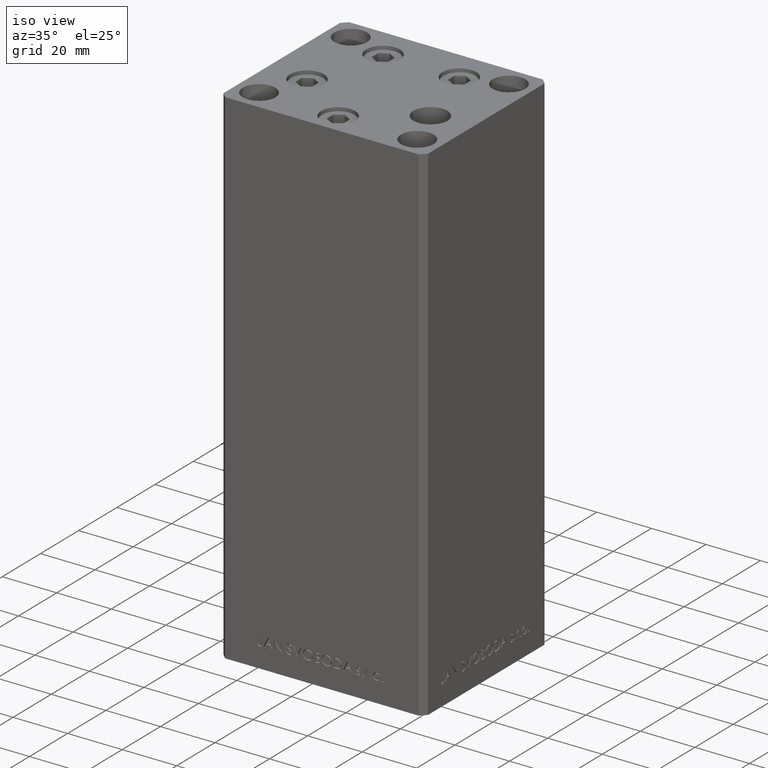
[diagram: clean part render]
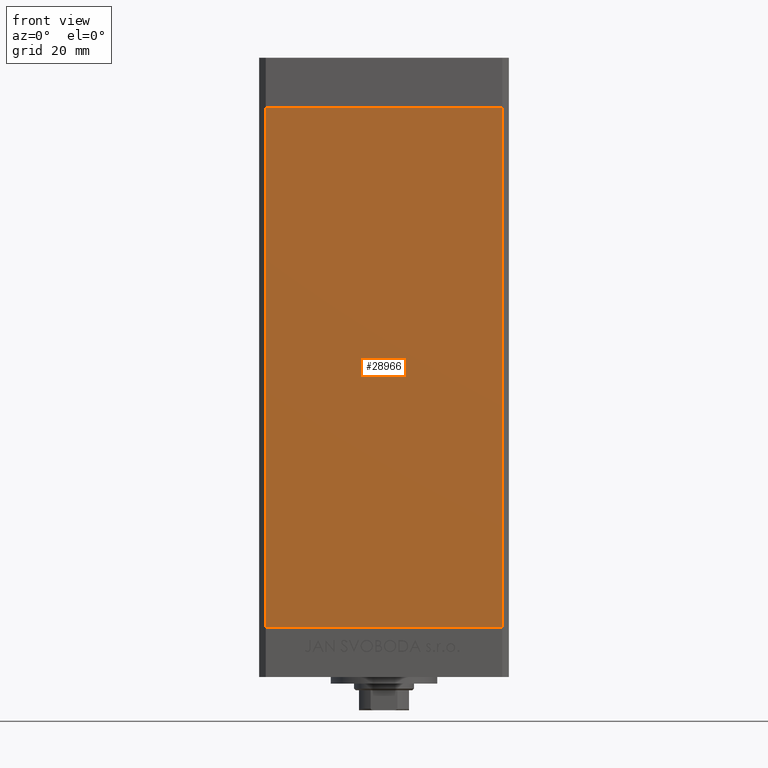
[diagram: tour spotlight — one face highlighted and labeled with its STEP entity id]
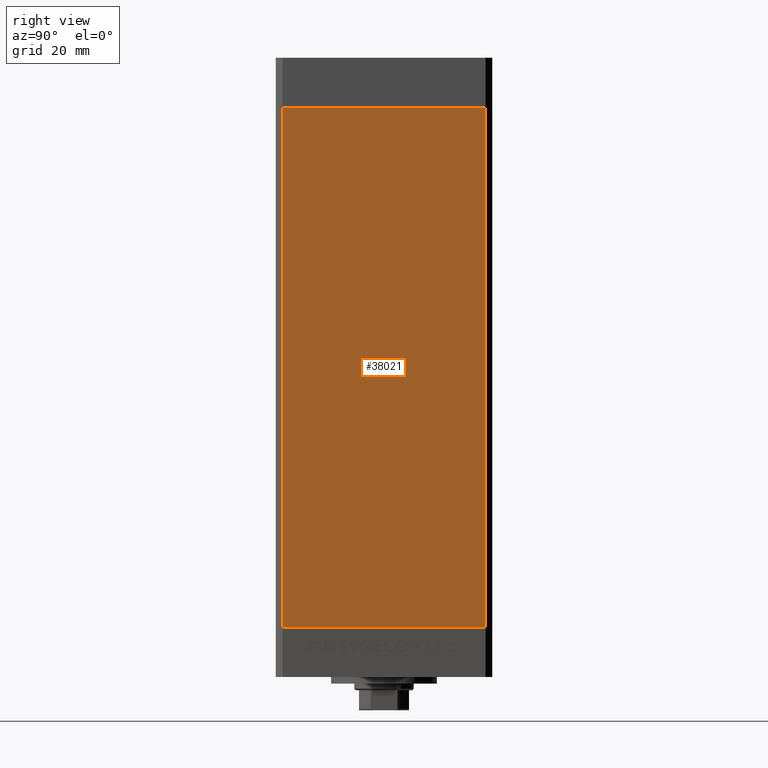
[diagram: tour spotlight — one face highlighted and labeled with its STEP entity id]
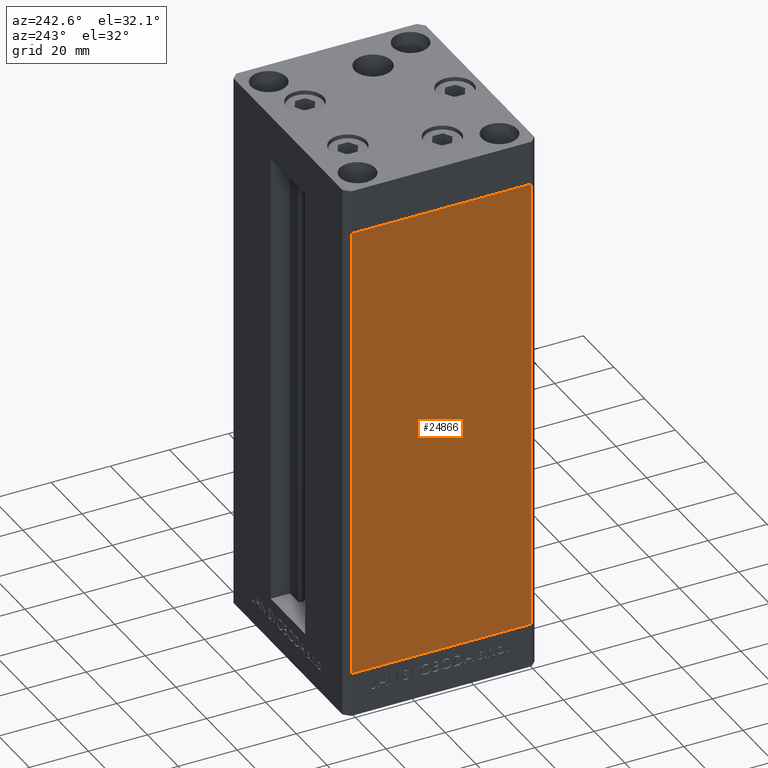
[diagram: tour spotlight — one face highlighted and labeled with its STEP entity id]
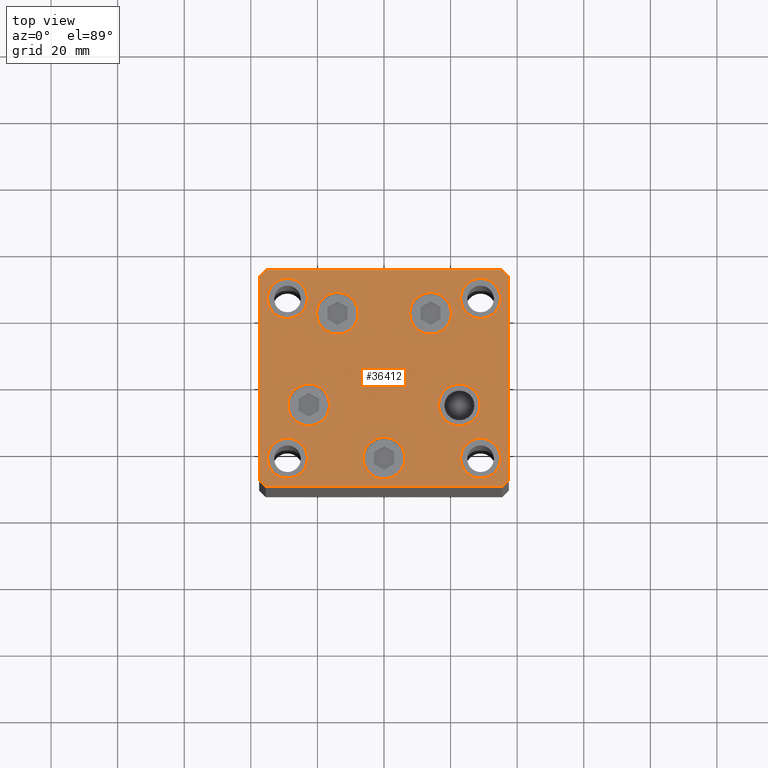
[diagram: tour spotlight — one face highlighted and labeled with its STEP entity id]
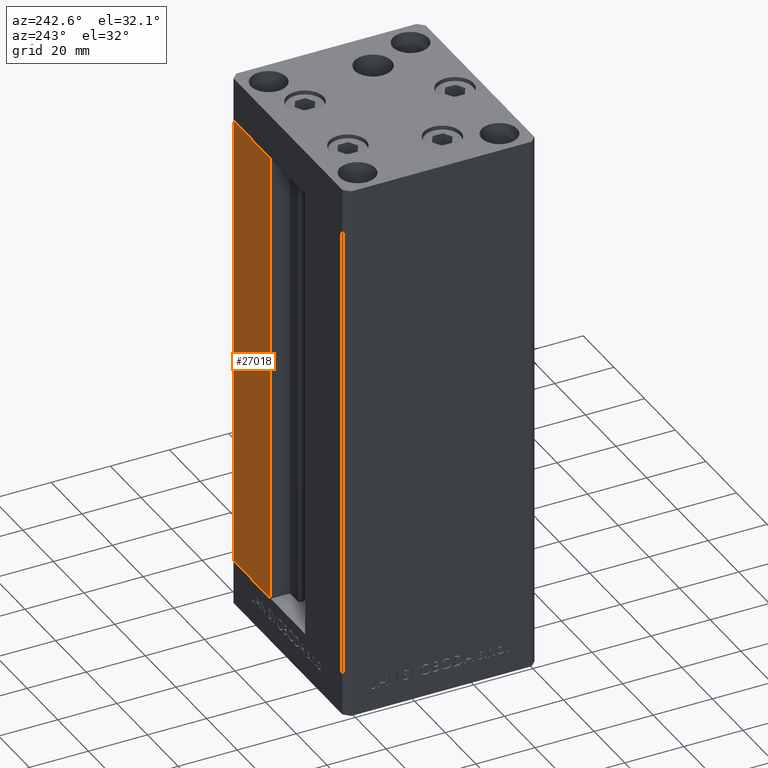
[diagram: tour spotlight — one face highlighted and labeled with its STEP entity id]
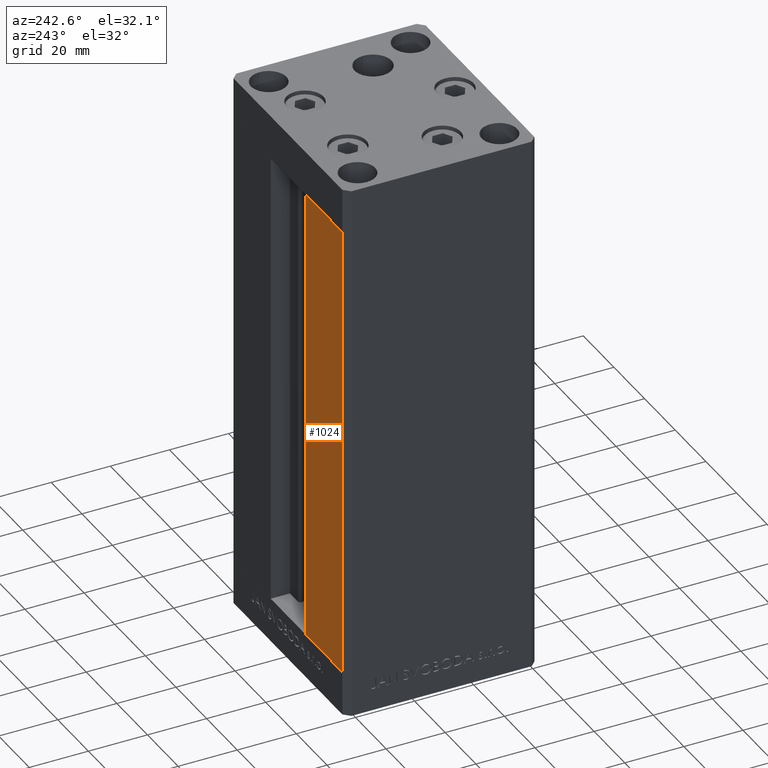
[diagram: tour spotlight — one face highlighted and labeled with its STEP entity id]
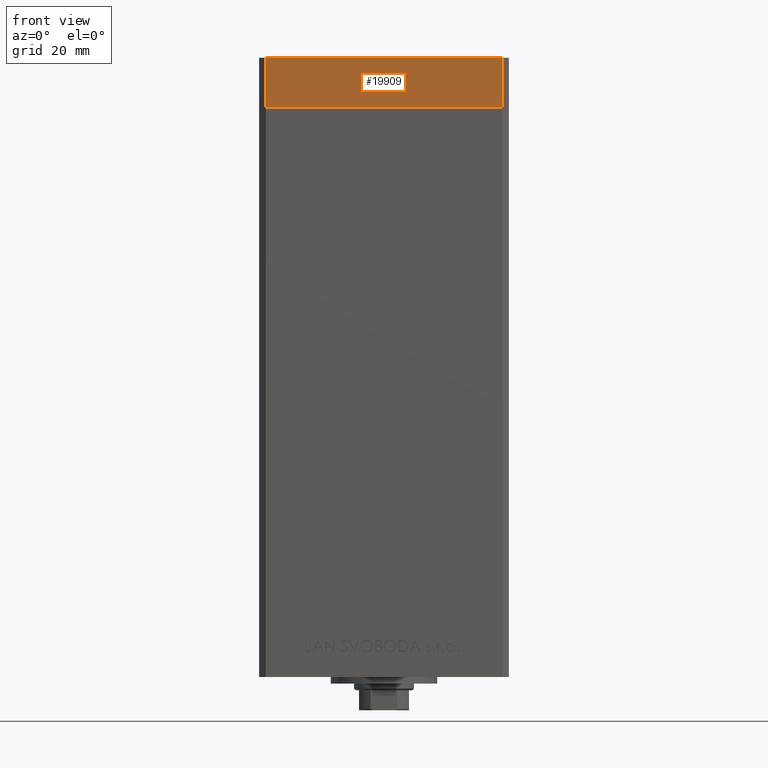
[diagram: tour spotlight — one face highlighted and labeled with its STEP entity id]
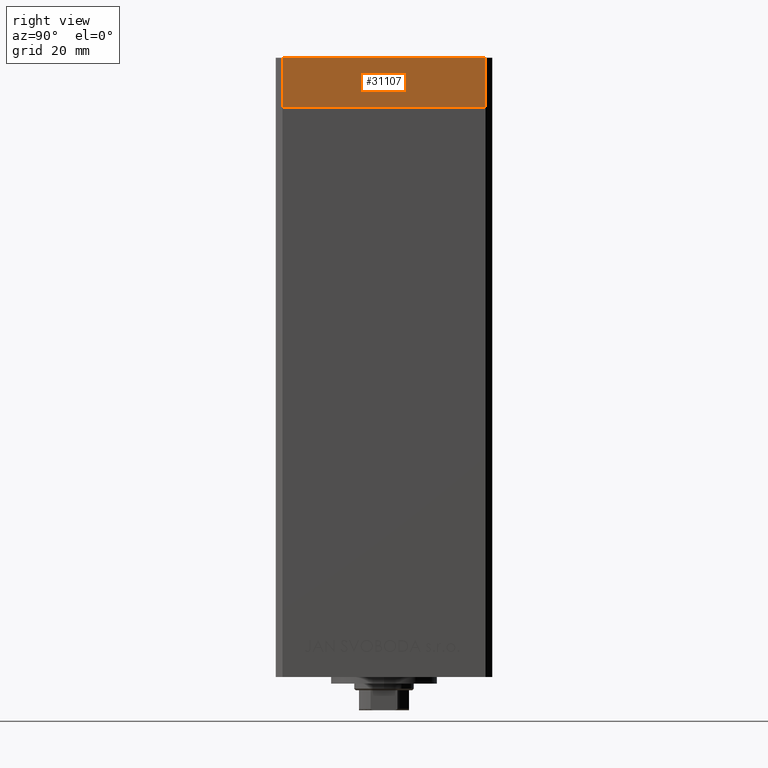
[diagram: tour spotlight — one face highlighted and labeled with its STEP entity id]
A machine part: a face-by-face anatomy tour. The part has 1159 B-rep faces; the first image is the clean iso view, then the 8 largest visible faces are spotlighted one at a time (largest first), each with its STEP entity span.

Face 1 — front view, entity #28966. In plain terms, the highlighted planar face has unit normal (0, 1, 0).
Definition (entity closure, byte-faithful):
#1615 = VECTOR ( 'NONE', #41957, 1000.000000000000000 ) ;
#3672 = EDGE_CURVE ( 'NONE', #6453, #14988, #38486, .T. ) ;
#3857 = CARTESIAN_POINT ( 'NONE',  ( -35.49999999999999289, -32.50000000000000000, 156.0000000000000000 ) ) ;
#4344 = DIRECTION ( 'NONE',  ( -0.000000000000000000, -0.000000000000000000, -1.000000000000000000 ) ) ;
#4359 = AXIS2_PLACEMENT_3D ( 'NONE', #45685, #4860, #23884 ) ;
#4860 = DIRECTION ( 'NONE',  ( 0.000000000000000000, 1.000000000000000000, 0.000000000000000000 ) ) ;
#6453 = VERTEX_POINT ( 'NONE', #3857 ) ;
#7443 = VECTOR ( 'NONE', #28297, 1000.000000000000000 ) ;
#7828 = CARTESIAN_POINT ( 'NONE',  ( 35.49999999999999289, -32.50000000000000000, 0.000000000000000000 ) ) ;
#8543 = CARTESIAN_POINT ( 'NONE',  ( -35.49999999999999289, -32.50000000000000000, 156.0000000000000000 ) ) ;
#10797 = EDGE_LOOP ( 'NONE', ( #30755, #13053, #24607, #21360 ) ) ;
#11780 = FACE_OUTER_BOUND ( 'NONE', #10797, .T. ) ;
#13053 = ORIENTED_EDGE ( 'NONE', *, *, #16970, .F. ) ;
#14988 = VERTEX_POINT ( 'NONE', #31912 ) ;
#15735 = PLANE ( 'NONE',  #4359 ) ;
#16970 = EDGE_CURVE ( 'NONE', #14988, #29059, #18964, .T. ) ;
#18964 = LINE ( 'NONE', #48925, #38212 ) ;
#19472 = EDGE_CURVE ( 'NONE', #30829, #29059, #47848, .T. ) ;
#21360 = ORIENTED_EDGE ( 'NONE', *, *, #43463, .T. ) ;
#23884 = DIRECTION ( 'NONE',  ( 0.000000000000000000, -0.000000000000000000, 1.000000000000000000 ) ) ;
#24607 = ORIENTED_EDGE ( 'NONE', *, *, #3672, .F. ) ;
#28297 = DIRECTION ( 'NONE',  ( 1.000000000000000000, 0.000000000000000000, 0.000000000000000000 ) ) ;
#28966 = ADVANCED_FACE ( 'NONE', ( #11780 ), #15735, .F. ) ;
#29059 = VERTEX_POINT ( 'NONE', #7828 ) ;
#30755 = ORIENTED_EDGE ( 'NONE', *, *, #19472, .T. ) ;
#30829 = VERTEX_POINT ( 'NONE', #33143 ) ;
#31912 = CARTESIAN_POINT ( 'NONE',  ( 35.49999999999999289, -32.50000000000000000, 156.0000000000000000 ) ) ;
#33143 = CARTESIAN_POINT ( 'NONE',  ( -35.49999999999999289, -32.50000000000000000, 0.000000000000000000 ) ) ;
#33323 = DIRECTION ( 'NONE',  ( -0.000000000000000000, -0.000000000000000000, -1.000000000000000000 ) ) ;
#34271 = CARTESIAN_POINT ( 'NONE',  ( -35.49999999999999289, -32.50000000000000000, 156.0000000000000000 ) ) ;
#38212 = VECTOR ( 'NONE', #33323, 1000.000000000000000 ) ;
#38486 = LINE ( 'NONE', #8543, #1615 ) ;
#39694 = CARTESIAN_POINT ( 'NONE',  ( -35.49999999999999289, -32.50000000000000000, 0.000000000000000000 ) ) ;
#41707 = LINE ( 'NONE', #34271, #46593 ) ;
#41957 = DIRECTION ( 'NONE',  ( 1.000000000000000000, 0.000000000000000000, 0.000000000000000000 ) ) ;
#43463 = EDGE_CURVE ( 'NONE', #6453, #30829, #41707, .T. ) ;
#45685 = CARTESIAN_POINT ( 'NONE',  ( -35.49999999999999289, -32.50000000000000000, 156.0000000000000000 ) ) ;
#46593 = VECTOR ( 'NONE', #4344, 1000.000000000000000 ) ;
#47848 = LINE ( 'NONE', #39694, #7443 ) ;
#48925 = CARTESIAN_POINT ( 'NONE',  ( 35.49999999999999289, -32.50000000000000000, 156.0000000000000000 ) ) ;

Face 2 — right view, entity #38021. In plain terms, the highlighted planar face has unit normal (1, -0, 0).
Definition (entity closure, byte-faithful):
#3224 = VERTEX_POINT ( 'NONE', #18986 ) ;
#3280 = LINE ( 'NONE', #36908, #9006 ) ;
#3858 = AXIS2_PLACEMENT_3D ( 'NONE', #31348, #38544, #34576 ) ;
#5426 = ORIENTED_EDGE ( 'NONE', *, *, #37177, .F. ) ;
#6684 = EDGE_LOOP ( 'NONE', ( #5426, #45636, #17080, #43014 ) ) ;
#6973 = VERTEX_POINT ( 'NONE', #21514 ) ;
#9006 = VECTOR ( 'NONE', #40389, 1000.000000000000000 ) ;
#11167 = CARTESIAN_POINT ( 'NONE',  ( 37.50000000000000711, 30.50000000000000000, 156.0000000000000000 ) ) ;
#15535 = PLANE ( 'NONE',  #3858 ) ;
#15683 = VECTOR ( 'NONE', #32560, 1000.000000000000000 ) ;
#16501 = FACE_OUTER_BOUND ( 'NONE', #6684, .T. ) ;
#16741 = LINE ( 'NONE', #42990, #15683 ) ;
#17080 = ORIENTED_EDGE ( 'NONE', *, *, #46245, .T. ) ;
#17406 = EDGE_CURVE ( 'NONE', #30280, #6973, #3280, .T. ) ;
#18945 = CARTESIAN_POINT ( 'NONE',  ( 37.50000000000000711, 30.50000000000000000, 156.0000000000000000 ) ) ;
#18986 = CARTESIAN_POINT ( 'NONE',  ( 37.50000000000000711, 30.50000000000000000, 0.000000000000000000 ) ) ;
#21514 = CARTESIAN_POINT ( 'NONE',  ( 37.49999999999999289, -30.50000000000000000, 0.000000000000000000 ) ) ;
#23349 = CARTESIAN_POINT ( 'NONE',  ( 37.49999999999999289, -30.50000000000000000, 156.0000000000000000 ) ) ;
#25630 = DIRECTION ( 'NONE',  ( -0.000000000000000000, -0.000000000000000000, -1.000000000000000000 ) ) ;
#26241 = DIRECTION ( 'NONE',  ( -2.275047181608927644E-16, -1.000000000000000000, 0.000000000000000000 ) ) ;
#28248 = VECTOR ( 'NONE', #25630, 1000.000000000000000 ) ;
#28870 = CARTESIAN_POINT ( 'NONE',  ( 37.50000000000000711, 30.50000000000000000, 156.0000000000000000 ) ) ;
#30280 = VERTEX_POINT ( 'NONE', #23349 ) ;
#31348 = CARTESIAN_POINT ( 'NONE',  ( 37.50000000000000711, 30.50000000000000000, 156.0000000000000000 ) ) ;
#32560 = DIRECTION ( 'NONE',  ( -2.275047181608927644E-16, -1.000000000000000000, 0.000000000000000000 ) ) ;
#34576 = DIRECTION ( 'NONE',  ( 2.275047181608927644E-16, 1.000000000000000000, 0.000000000000000000 ) ) ;
#35002 = EDGE_CURVE ( 'NONE', #39675, #3224, #44215, .T. ) ;
#36908 = CARTESIAN_POINT ( 'NONE',  ( 37.49999999999999289, -30.50000000000000000, 156.0000000000000000 ) ) ;
#37177 = EDGE_CURVE ( 'NONE', #3224, #6973, #16741, .T. ) ;
#38021 = ADVANCED_FACE ( 'NONE', ( #16501 ), #15535, .T. ) ;
#38544 = DIRECTION ( 'NONE',  ( 1.000000000000000000, -2.275047181608927644E-16, 0.000000000000000000 ) ) ;
#39675 = VERTEX_POINT ( 'NONE', #18945 ) ;
#40389 = DIRECTION ( 'NONE',  ( -0.000000000000000000, -0.000000000000000000, -1.000000000000000000 ) ) ;
#42747 = VECTOR ( 'NONE', #26241, 1000.000000000000000 ) ;
#42990 = CARTESIAN_POINT ( 'NONE',  ( 37.50000000000000711, 30.50000000000000000, 0.000000000000000000 ) ) ;
#43014 = ORIENTED_EDGE ( 'NONE', *, *, #17406, .T. ) ;
#44215 = LINE ( 'NONE', #28870, #28248 ) ;
#45071 = LINE ( 'NONE', #11167, #42747 ) ;
#45636 = ORIENTED_EDGE ( 'NONE', *, *, #35002, .F. ) ;
#46245 = EDGE_CURVE ( 'NONE', #39675, #30280, #45071, .T. ) ;

Face 3 — auxiliary view, entity #24866. In plain terms, the highlighted planar face has unit normal (1, 0, 0).
Definition (entity closure, byte-faithful):
#68 = ORIENTED_EDGE ( 'NONE', *, *, #17052, .F. ) ;
#253 = PLANE ( 'NONE',  #1240 ) ;
#306 = CARTESIAN_POINT ( 'NONE',  ( -37.50000000000000711, 30.50000000000000000, 0.000000000000000000 ) ) ;
#1240 = AXIS2_PLACEMENT_3D ( 'NONE', #33632, #4447, #46011 ) ;
#1460 = CARTESIAN_POINT ( 'NONE',  ( -37.50000000000000711, 30.50000000000000000, 156.0000000000000000 ) ) ;
#1703 = DIRECTION ( 'NONE',  ( -0.000000000000000000, -0.000000000000000000, -1.000000000000000000 ) ) ;
#4447 = DIRECTION ( 'NONE',  ( 1.000000000000000000, 2.275047181608927644E-16, -0.000000000000000000 ) ) ;
#4874 = DIRECTION ( 'NONE',  ( 2.275047181608927644E-16, -1.000000000000000000, 0.000000000000000000 ) ) ;
#5170 = DIRECTION ( 'NONE',  ( 2.275047181608927644E-16, -1.000000000000000000, 0.000000000000000000 ) ) ;
#10906 = CARTESIAN_POINT ( 'NONE',  ( -37.49999999999999289, -30.50000000000000000, 0.000000000000000000 ) ) ;
#11428 = LINE ( 'NONE', #306, #44671 ) ;
#16246 = VERTEX_POINT ( 'NONE', #24563 ) ;
#17052 = EDGE_CURVE ( 'NONE', #48352, #24121, #42733, .T. ) ;
#21246 = EDGE_CURVE ( 'NONE', #16246, #32570, #11428, .T. ) ;
#21912 = ORIENTED_EDGE ( 'NONE', *, *, #35658, .T. ) ;
#22020 = EDGE_CURVE ( 'NONE', #24121, #32570, #41633, .T. ) ;
#22656 = CARTESIAN_POINT ( 'NONE',  ( -37.49999999999999289, -30.50000000000000000, 156.0000000000000000 ) ) ;
#23413 = CARTESIAN_POINT ( 'NONE',  ( -37.50000000000000711, 30.50000000000000000, 156.0000000000000000 ) ) ;
#23698 = LINE ( 'NONE', #1460, #30606 ) ;
#24121 = VERTEX_POINT ( 'NONE', #22656 ) ;
#24563 = CARTESIAN_POINT ( 'NONE',  ( -37.50000000000000711, 30.50000000000000000, 0.000000000000000000 ) ) ;
#24866 = ADVANCED_FACE ( 'NONE', ( #33880 ), #253, .F. ) ;
#25708 = ORIENTED_EDGE ( 'NONE', *, *, #22020, .F. ) ;
#26328 = VECTOR ( 'NONE', #4874, 1000.000000000000000 ) ;
#30606 = VECTOR ( 'NONE', #1703, 1000.000000000000000 ) ;
#32570 = VERTEX_POINT ( 'NONE', #10906 ) ;
#32657 = ORIENTED_EDGE ( 'NONE', *, *, #21246, .T. ) ;
#33632 = CARTESIAN_POINT ( 'NONE',  ( -37.50000000000000711, 30.50000000000000000, 156.0000000000000000 ) ) ;
#33880 = FACE_OUTER_BOUND ( 'NONE', #40737, .T. ) ;
#35658 = EDGE_CURVE ( 'NONE', #48352, #16246, #23698, .T. ) ;
#37169 = CARTESIAN_POINT ( 'NONE',  ( -37.49999999999999289, -30.50000000000000000, 156.0000000000000000 ) ) ;
#40737 = EDGE_LOOP ( 'NONE', ( #32657, #25708, #68, #21912 ) ) ;
#41633 = LINE ( 'NONE', #37169, #48654 ) ;
#42733 = LINE ( 'NONE', #23413, #26328 ) ;
#44671 = VECTOR ( 'NONE', #5170, 1000.000000000000000 ) ;
#46011 = DIRECTION ( 'NONE',  ( -2.275047181608927644E-16, 1.000000000000000000, 0.000000000000000000 ) ) ;
#46053 = CARTESIAN_POINT ( 'NONE',  ( -37.50000000000000711, 30.50000000000000000, 156.0000000000000000 ) ) ;
#48080 = DIRECTION ( 'NONE',  ( -0.000000000000000000, -0.000000000000000000, -1.000000000000000000 ) ) ;
#48352 = VERTEX_POINT ( 'NONE', #46053 ) ;
#48654 = VECTOR ( 'NONE', #48080, 1000.000000000000000 ) ;

Face 4 — top view, entity #36412. In plain terms, the highlighted planar face has unit normal (0, 0, 1).
Definition (entity closure, byte-faithful):
#635 = CARTESIAN_POINT ( 'NONE',  ( -35.00000000000000711, 24.00000000000000711, 0.000000000000000000 ) ) ;
#784 = DIRECTION ( 'NONE',  ( 1.000000000000000000, 0.000000000000000000, 0.000000000000000000 ) ) ;
#1067 = FACE_BOUND ( 'NONE', #29902, .T. ) ;
#1311 = DIRECTION ( 'NONE',  ( 1.000000000000000000, 0.000000000000000000, 0.000000000000000000 ) ) ;
#1316 = EDGE_CURVE ( 'NONE', #1577, #38090, #8615, .T. ) ;
#1577 = VERTEX_POINT ( 'NONE', #47611 ) ;
#1899 = ORIENTED_EDGE ( 'NONE', *, *, #19289, .T. ) ;
#1944 = DIRECTION ( 'NONE',  ( 1.000000000000000000, 0.000000000000000000, 0.000000000000000000 ) ) ;
#2448 = ORIENTED_EDGE ( 'NONE', *, *, #40723, .T. ) ;
#2458 = VERTEX_POINT ( 'NONE', #9267 ) ;
#3151 = EDGE_CURVE ( 'NONE', #15138, #32490, #17341, .T. ) ;
#3172 = EDGE_LOOP ( 'NONE', ( #6518, #40600 ) ) ;
#3352 = DIRECTION ( 'NONE',  ( 1.000000000000000000, 0.000000000000000000, 0.000000000000000000 ) ) ;
#3405 = VERTEX_POINT ( 'NONE', #17231 ) ;
#3582 = EDGE_LOOP ( 'NONE', ( #22235, #48798 ) ) ;
#3764 = EDGE_LOOP ( 'NONE', ( #23133, #1899, #22335, #14772, #24613, #30028, #14711, #11313 ) ) ;
#4007 = DIRECTION ( 'NONE',  ( 0.000000000000000000, 0.000000000000000000, 1.000000000000000000 ) ) ;
#4031 = CARTESIAN_POINT ( 'NONE',  ( -23.00000000000001421, -23.99999999999999289, 0.000000000000000000 ) ) ;
#4178 = EDGE_LOOP ( 'NONE', ( #31979, #27496 ) ) ;
#4292 = DIRECTION ( 'NONE',  ( 0.000000000000000000, 0.000000000000000000, 1.000000000000000000 ) ) ;
#4294 = CARTESIAN_POINT ( 'NONE',  ( -37.50000000000001421, 30.49999999999998579, 0.000000000000000000 ) ) ;
#4341 = CIRCLE ( 'NONE', #28798, 5.999999999999998224 ) ;
#4370 = DIRECTION ( 'NONE',  ( 1.000000000000000000, 0.000000000000000000, 0.000000000000000000 ) ) ;
#4380 = CIRCLE ( 'NONE', #19354, 6.000000000000005329 ) ;
#4575 = CARTESIAN_POINT ( 'NONE',  ( -35.50000000000002842, 32.49999999999999289, 0.000000000000000000 ) ) ;
#4673 = AXIS2_PLACEMENT_3D ( 'NONE', #42272, #43003, #23443 ) ;
#4804 = DIRECTION ( 'NONE',  ( 1.000000000000000000, 0.000000000000000000, 0.000000000000000000 ) ) ;
#5050 = DIRECTION ( 'NONE',  ( 0.000000000000000000, 0.000000000000000000, 1.000000000000000000 ) ) ;
#5097 = CARTESIAN_POINT ( 'NONE',  ( 23.00000000000001066, 24.00000000000000711, 0.000000000000000000 ) ) ;
#5115 = DIRECTION ( 'NONE',  ( 0.000000000000000000, -0.000000000000000000, -1.000000000000000000 ) ) ;
#5788 = CARTESIAN_POINT ( 'NONE',  ( 13.99106857963322348, 19.50000000000000000, 0.000000000000000000 ) ) ;
#5947 = CARTESIAN_POINT ( 'NONE',  ( -35.00000000000000711, -23.99999999999999289, 0.000000000000000000 ) ) ;
#6518 = ORIENTED_EDGE ( 'NONE', *, *, #44543, .T. ) ;
#7755 = LINE ( 'NONE', #4294, #47030 ) ;
#7955 = CARTESIAN_POINT ( 'NONE',  ( -29.00000000000001066, -23.99999999999999289, 0.000000000000000000 ) ) ;
#8034 = EDGE_LOOP ( 'NONE', ( #16939, #26397 ) ) ;
#8073 = DIRECTION ( 'NONE',  ( 0.000000000000000000, -0.000000000000000000, -1.000000000000000000 ) ) ;
#8511 = VERTEX_POINT ( 'NONE', #22669 ) ;
#8615 = CIRCLE ( 'NONE', #36270, 6.250000000000000000 ) ;
#8712 = FACE_BOUND ( 'NONE', #25829, .T. ) ;
#9219 = AXIS2_PLACEMENT_3D ( 'NONE', #48044, #45308, #14141 ) ;
#9267 = CARTESIAN_POINT ( 'NONE',  ( 35.49999999999992184, 32.50000000000000711, 0.000000000000000000 ) ) ;
#9570 = VECTOR ( 'NONE', #48497, 999.9999999999998863 ) ;
#9939 = AXIS2_PLACEMENT_3D ( 'NONE', #7955, #4007, #38384 ) ;
#10220 = EDGE_LOOP ( 'NONE', ( #34171, #31914 ) ) ;
#10526 = EDGE_LOOP ( 'NONE', ( #2448, #22356 ) ) ;
#10746 = VERTEX_POINT ( 'NONE', #635 ) ;
#10883 = CIRCLE ( 'NONE', #48043, 6.250000000000001776 ) ;
#11026 = DIRECTION ( 'NONE',  ( 0.000000000000000000, -0.000000000000000000, -1.000000000000000000 ) ) ;
#11151 = CARTESIAN_POINT ( 'NONE',  ( 23.00000000000001066, -23.99999999999999289, 0.000000000000000000 ) ) ;
#11313 = ORIENTED_EDGE ( 'NONE', *, *, #28417, .T. ) ;
#11506 = DIRECTION ( 'NONE',  ( 1.000000000000000000, 9.773090005503140331E-17, 0.000000000000000000 ) ) ;
#11525 = CARTESIAN_POINT ( 'NONE',  ( 22.62741699796951877, -8.000000000000000000, 0.000000000000000000 ) ) ;
#12042 = LINE ( 'NONE', #26866, #39134 ) ;
#12200 = DIRECTION ( 'NONE',  ( 1.000000000000000000, 0.000000000000000000, 0.000000000000000000 ) ) ;
#12203 = VERTEX_POINT ( 'NONE', #21426 ) ;
#12228 = CARTESIAN_POINT ( 'NONE',  ( 29.00000000000001066, -23.99999999999999289, 0.000000000000000000 ) ) ;
#12330 = EDGE_CURVE ( 'NONE', #48072, #12708, #38963, .T. ) ;
#12394 = EDGE_CURVE ( 'NONE', #3405, #29952, #31956, .T. ) ;
#12399 = CARTESIAN_POINT ( 'NONE',  ( -29.00000000000001066, 24.00000000000000711, 0.000000000000000000 ) ) ;
#12702 = VERTEX_POINT ( 'NONE', #5947 ) ;
#12708 = VERTEX_POINT ( 'NONE', #36829 ) ;
#12791 = AXIS2_PLACEMENT_3D ( 'NONE', #26097, #11026, #46827 ) ;
#12925 = FACE_BOUND ( 'NONE', #8034, .T. ) ;
#13453 = EDGE_CURVE ( 'NONE', #12203, #10746, #35694, .T. ) ;
#13512 = DIRECTION ( 'NONE',  ( 0.000000000000000000, -0.000000000000000000, -1.000000000000000000 ) ) ;
#13798 = CARTESIAN_POINT ( 'NONE',  ( -37.50000000000001421, 30.49999999999998579, 0.000000000000000000 ) ) ;
#14105 = CARTESIAN_POINT ( 'NONE',  ( -35.49999999999998579, -32.50000000000001421, 0.000000000000000000 ) ) ;
#14141 = DIRECTION ( 'NONE',  ( 1.000000000000000000, 0.000000000000000000, 0.000000000000000000 ) ) ;
#14711 = ORIENTED_EDGE ( 'NONE', *, *, #41767, .T. ) ;
#14772 = ORIENTED_EDGE ( 'NONE', *, *, #22227, .T. ) ;
#14803 = DIRECTION ( 'NONE',  ( 0.000000000000000000, 0.000000000000000000, 1.000000000000000000 ) ) ;
#15138 = VERTEX_POINT ( 'NONE', #5097 ) ;
#15478 = DIRECTION ( 'NONE',  ( 1.000000000000000000, 0.000000000000000000, 0.000000000000000000 ) ) ;
#15890 = FACE_BOUND ( 'NONE', #10220, .T. ) ;
#16214 = CIRCLE ( 'NONE', #47800, 5.999999999999998224 ) ;
#16239 = CARTESIAN_POINT ( 'NONE',  ( 2.939152317953647500E-15, -24.00000000000000000, 0.000000000000000000 ) ) ;
#16361 = CIRCLE ( 'NONE', #9219, 6.000000000000005329 ) ;
#16556 = CIRCLE ( 'NONE', #30741, 6.250000000000000000 ) ;
#16628 = CARTESIAN_POINT ( 'NONE',  ( 37.50000000000001421, -30.50000000000000711, 0.000000000000000000 ) ) ;
#16874 = CARTESIAN_POINT ( 'NONE',  ( 37.49999999999992184, 30.50000000000001066, 0.000000000000000000 ) ) ;
#16939 = ORIENTED_EDGE ( 'NONE', *, *, #28720, .F. ) ;
#17231 = CARTESIAN_POINT ( 'NONE',  ( -37.49999999999998579, -30.50000000000001421, 0.000000000000000000 ) ) ;
#17341 = CIRCLE ( 'NONE', #40264, 6.000000000000005329 ) ;
#17670 = ORIENTED_EDGE ( 'NONE', *, *, #18234, .F. ) ;
#18029 = AXIS2_PLACEMENT_3D ( 'NONE', #27992, #27261, #1311 ) ;
#18041 = LINE ( 'NONE', #29425, #9570 ) ;
#18173 = DIRECTION ( 'NONE',  ( 1.000000000000000000, 0.000000000000000000, 0.000000000000000000 ) ) ;
#18234 = EDGE_CURVE ( 'NONE', #48011, #31689, #48519, .T. ) ;
#18900 = DIRECTION ( 'NONE',  ( 0.000000000000000000, 0.000000000000000000, 1.000000000000000000 ) ) ;
#19289 = EDGE_CURVE ( 'NONE', #29952, #24117, #30289, .T. ) ;
#19354 = AXIS2_PLACEMENT_3D ( 'NONE', #12228, #5050, #4804 ) ;
#19593 = CARTESIAN_POINT ( 'NONE',  ( -22.62741699796951877, -8.000000000000005329, 0.000000000000000000 ) ) ;
#20052 = EDGE_CURVE ( 'NONE', #24117, #44729, #34727, .T. ) ;
#20103 = VECTOR ( 'NONE', #45630, 1000.000000000000000 ) ;
#20134 = EDGE_CURVE ( 'NONE', #10746, #12203, #4341, .T. ) ;
#20178 = VECTOR ( 'NONE', #39874, 1000.000000000000000 ) ;
#20428 = DIRECTION ( 'NONE',  ( 1.000000000000000000, 0.000000000000000000, 0.000000000000000000 ) ) ;
#20468 = CARTESIAN_POINT ( 'NONE',  ( -29.00000000000001066, -23.99999999999999289, 0.000000000000000000 ) ) ;
#20472 = VERTEX_POINT ( 'NONE', #13798 ) ;
#20657 = EDGE_CURVE ( 'NONE', #2458, #33018, #12042, .T. ) ;
#20859 = DIRECTION ( 'NONE',  ( 0.000000000000000000, -0.000000000000000000, -1.000000000000000000 ) ) ;
#20934 = EDGE_CURVE ( 'NONE', #31689, #48011, #4380, .T. ) ;
#21054 = CARTESIAN_POINT ( 'NONE',  ( -16.37741699796951877, -8.000000000000005329, 0.000000000000000000 ) ) ;
#21179 = DIRECTION ( 'NONE',  ( 0.000000000000000000, -0.000000000000000000, -1.000000000000000000 ) ) ;
#21417 = CARTESIAN_POINT ( 'NONE',  ( 2.939152317953647500E-15, -24.00000000000000000, 0.000000000000000000 ) ) ;
#21426 = CARTESIAN_POINT ( 'NONE',  ( -23.00000000000001421, 24.00000000000000711, 0.000000000000000000 ) ) ;
#21545 = EDGE_CURVE ( 'NONE', #38090, #1577, #28061, .T. ) ;
#21849 = CARTESIAN_POINT ( 'NONE',  ( 7.741068579633223479, 19.50000000000000000, 0.000000000000000000 ) ) ;
#22227 = EDGE_CURVE ( 'NONE', #44729, #44661, #32670, .T. ) ;
#22235 = ORIENTED_EDGE ( 'NONE', *, *, #38890, .T. ) ;
#22335 = ORIENTED_EDGE ( 'NONE', *, *, #20052, .T. ) ;
#22356 = ORIENTED_EDGE ( 'NONE', *, *, #47693, .T. ) ;
#22387 = AXIS2_PLACEMENT_3D ( 'NONE', #30038, #18900, #3352 ) ;
#22669 = CARTESIAN_POINT ( 'NONE',  ( 20.24106857963322526, 19.50000000000000000, 0.000000000000000000 ) ) ;
#22719 = VERTEX_POINT ( 'NONE', #33765 ) ;
#23133 = ORIENTED_EDGE ( 'NONE', *, *, #12394, .T. ) ;
#23186 = CARTESIAN_POINT ( 'NONE',  ( -13.99106857963322703, 19.49999999999999645, 0.000000000000000000 ) ) ;
#23361 = LINE ( 'NONE', #4575, #45068 ) ;
#23443 = DIRECTION ( 'NONE',  ( 1.000000000000000000, 0.000000000000000000, 0.000000000000000000 ) ) ;
#23869 = CARTESIAN_POINT ( 'NONE',  ( 35.00000000000001421, -23.99999999999999289, 0.000000000000000000 ) ) ;
#23888 = DIRECTION ( 'NONE',  ( -1.000000000000000000, -1.954618001100629052E-16, 0.000000000000000000 ) ) ;
#24117 = VERTEX_POINT ( 'NONE', #45203 ) ;
#24122 = CIRCLE ( 'NONE', #43082, 6.250000000000000000 ) ;
#24488 = EDGE_CURVE ( 'NONE', #8511, #28252, #24122, .T. ) ;
#24613 = ORIENTED_EDGE ( 'NONE', *, *, #47524, .T. ) ;
#24672 = DIRECTION ( 'NONE',  ( 0.000000000000000000, 0.000000000000000000, 1.000000000000000000 ) ) ;
#25829 = EDGE_LOOP ( 'NONE', ( #33724, #28891 ) ) ;
#26097 = CARTESIAN_POINT ( 'NONE',  ( -13.99106857963322703, 19.49999999999999645, 0.000000000000000000 ) ) ;
#26397 = ORIENTED_EDGE ( 'NONE', *, *, #29588, .F. ) ;
#26866 = CARTESIAN_POINT ( 'NONE',  ( 35.49999999999992184, 32.50000000000000711, 0.000000000000000000 ) ) ;
#26928 = CARTESIAN_POINT ( 'NONE',  ( -28.87741699796952233, -8.000000000000005329, 0.000000000000000000 ) ) ;
#27019 = FACE_BOUND ( 'NONE', #10526, .T. ) ;
#27261 = DIRECTION ( 'NONE',  ( -0.000000000000000000, 0.000000000000000000, 1.000000000000000000 ) ) ;
#27496 = ORIENTED_EDGE ( 'NONE', *, *, #12330, .T. ) ;
#27501 = FACE_BOUND ( 'NONE', #3582, .T. ) ;
#27853 = CARTESIAN_POINT ( 'NONE',  ( 22.62741699796951877, -8.000000000000000000, 0.000000000000000000 ) ) ;
#27992 = CARTESIAN_POINT ( 'NONE',  ( 0.000000000000000000, 0.000000000000000000, 0.000000000000000000 ) ) ;
#28061 = CIRCLE ( 'NONE', #46274, 6.250000000000000000 ) ;
#28252 = VERTEX_POINT ( 'NONE', #21849 ) ;
#28417 = EDGE_CURVE ( 'NONE', #20472, #3405, #7755, .T. ) ;
#28675 = VECTOR ( 'NONE', #47310, 1000.000000000000114 ) ;
#28720 = EDGE_CURVE ( 'NONE', #42604, #12702, #16214, .T. ) ;
#28798 = AXIS2_PLACEMENT_3D ( 'NONE', #12399, #34650, #784 ) ;
#28891 = ORIENTED_EDGE ( 'NONE', *, *, #20134, .F. ) ;
#29425 = CARTESIAN_POINT ( 'NONE',  ( 37.49999999999992184, 30.50000000000001066, 0.000000000000000000 ) ) ;
#29575 = CARTESIAN_POINT ( 'NONE',  ( -35.50000000000002842, 32.49999999999999289, 0.000000000000000000 ) ) ;
#29588 = EDGE_CURVE ( 'NONE', #12702, #42604, #40730, .T. ) ;
#29902 = EDGE_LOOP ( 'NONE', ( #32509, #46203 ) ) ;
#29952 = VERTEX_POINT ( 'NONE', #14105 ) ;
#29973 = VERTEX_POINT ( 'NONE', #26928 ) ;
#30028 = ORIENTED_EDGE ( 'NONE', *, *, #20657, .T. ) ;
#30038 = CARTESIAN_POINT ( 'NONE',  ( 29.00000000000001066, -23.99999999999999289, 0.000000000000000000 ) ) ;
#30122 = DIRECTION ( 'NONE',  ( 1.000000000000000000, 0.000000000000000000, 0.000000000000000000 ) ) ;
#30289 = LINE ( 'NONE', #45408, #46208 ) ;
#30741 = AXIS2_PLACEMENT_3D ( 'NONE', #23186, #31341, #46215 ) ;
#30766 = VERTEX_POINT ( 'NONE', #21054 ) ;
#30815 = CARTESIAN_POINT ( 'NONE',  ( -22.62741699796951877, -8.000000000000005329, 0.000000000000000000 ) ) ;
#30973 = FACE_BOUND ( 'NONE', #4178, .T. ) ;
#30982 = DIRECTION ( 'NONE',  ( 0.000000000000000000, -0.000000000000000000, -1.000000000000000000 ) ) ;
#31020 = EDGE_LOOP ( 'NONE', ( #17670, #48363 ) ) ;
#31341 = DIRECTION ( 'NONE',  ( 0.000000000000000000, -0.000000000000000000, -1.000000000000000000 ) ) ;
#31689 = VERTEX_POINT ( 'NONE', #11151 ) ;
#31914 = ORIENTED_EDGE ( 'NONE', *, *, #1316, .T. ) ;
#31956 = LINE ( 'NONE', #46342, #28675 ) ;
#31979 = ORIENTED_EDGE ( 'NONE', *, *, #43253, .T. ) ;
#32490 = VERTEX_POINT ( 'NONE', #32928 ) ;
#32509 = ORIENTED_EDGE ( 'NONE', *, *, #32639, .F. ) ;
#32639 = EDGE_CURVE ( 'NONE', #32490, #15138, #16361, .T. ) ;
#32670 = LINE ( 'NONE', #43101, #20178 ) ;
#32928 = CARTESIAN_POINT ( 'NONE',  ( 35.00000000000001421, 24.00000000000000711, 0.000000000000000000 ) ) ;
#33018 = VERTEX_POINT ( 'NONE', #29575 ) ;
#33724 = ORIENTED_EDGE ( 'NONE', *, *, #13453, .F. ) ;
#33765 = CARTESIAN_POINT ( 'NONE',  ( 16.37741699796951877, -8.000000000000000000, 0.000000000000000000 ) ) ;
#34171 = ORIENTED_EDGE ( 'NONE', *, *, #21545, .T. ) ;
#34650 = DIRECTION ( 'NONE',  ( 0.000000000000000000, 0.000000000000000000, 1.000000000000000000 ) ) ;
#34688 = FACE_BOUND ( 'NONE', #31020, .T. ) ;
#34727 = LINE ( 'NONE', #38692, #20103 ) ;
#35102 = EDGE_CURVE ( 'NONE', #30766, #29973, #10883, .T. ) ;
#35694 = CIRCLE ( 'NONE', #41249, 5.999999999999998224 ) ;
#35706 = DIRECTION ( 'NONE',  ( 1.000000000000000000, 0.000000000000000000, 0.000000000000000000 ) ) ;
#36270 = AXIS2_PLACEMENT_3D ( 'NONE', #21417, #21179, #18173 ) ;
#36343 = AXIS2_PLACEMENT_3D ( 'NONE', #19593, #30982, #12200 ) ;
#36412 = ADVANCED_FACE ( 'NONE', ( #30973, #27501, #27019, #15890, #38655, #34688, #12925, #8712, #1067, #42130 ), #42623, .T. ) ;
#36829 = CARTESIAN_POINT ( 'NONE',  ( -20.24106857963322881, 19.49999999999999645, 0.000000000000000000 ) ) ;
#38090 = VERTEX_POINT ( 'NONE', #44202 ) ;
#38384 = DIRECTION ( 'NONE',  ( 1.000000000000000000, 0.000000000000000000, 0.000000000000000000 ) ) ;
#38405 = VERTEX_POINT ( 'NONE', #41408 ) ;
#38655 = FACE_BOUND ( 'NONE', #3172, .T. ) ;
#38692 = CARTESIAN_POINT ( 'NONE',  ( 35.50000000000000711, -32.50000000000000711, 0.000000000000000000 ) ) ;
#38716 = CIRCLE ( 'NONE', #36343, 6.250000000000001776 ) ;
#38890 = EDGE_CURVE ( 'NONE', #28252, #8511, #41834, .T. ) ;
#38963 = CIRCLE ( 'NONE', #12791, 6.250000000000000000 ) ;
#39134 = VECTOR ( 'NONE', #23888, 1000.000000000000000 ) ;
#39163 = DIRECTION ( 'NONE',  ( 1.000000000000000000, 0.000000000000000000, 0.000000000000000000 ) ) ;
#39874 = DIRECTION ( 'NONE',  ( -1.478780668045802821E-15, 1.000000000000000000, 0.000000000000000000 ) ) ;
#40264 = AXIS2_PLACEMENT_3D ( 'NONE', #45723, #14803, #30122 ) ;
#40600 = ORIENTED_EDGE ( 'NONE', *, *, #35102, .T. ) ;
#40723 = EDGE_CURVE ( 'NONE', #22719, #38405, #41897, .T. ) ;
#40730 = CIRCLE ( 'NONE', #9939, 5.999999999999998224 ) ;
#41249 = AXIS2_PLACEMENT_3D ( 'NONE', #42149, #4292, #39163 ) ;
#41408 = CARTESIAN_POINT ( 'NONE',  ( 28.87741699796952233, -8.000000000000000000, 0.000000000000000000 ) ) ;
#41767 = EDGE_CURVE ( 'NONE', #33018, #20472, #23361, .T. ) ;
#41834 = CIRCLE ( 'NONE', #4673, 6.250000000000000000 ) ;
#41897 = CIRCLE ( 'NONE', #46641, 6.250000000000001776 ) ;
#41942 = DIRECTION ( 'NONE',  ( -0.7071067811865426878, -0.7071067811865524577, 0.000000000000000000 ) ) ;
#42130 = FACE_OUTER_BOUND ( 'NONE', #3764, .T. ) ;
#42149 = CARTESIAN_POINT ( 'NONE',  ( -29.00000000000001066, 24.00000000000000711, 0.000000000000000000 ) ) ;
#42272 = CARTESIAN_POINT ( 'NONE',  ( 13.99106857963322348, 19.50000000000000000, 0.000000000000000000 ) ) ;
#42604 = VERTEX_POINT ( 'NONE', #4031 ) ;
#42623 = PLANE ( 'NONE',  #18029 ) ;
#42973 = DIRECTION ( 'NONE',  ( 1.000000000000000000, 0.000000000000000000, 0.000000000000000000 ) ) ;
#43003 = DIRECTION ( 'NONE',  ( 0.000000000000000000, -0.000000000000000000, -1.000000000000000000 ) ) ;
#43082 = AXIS2_PLACEMENT_3D ( 'NONE', #5788, #20859, #35706 ) ;
#43101 = CARTESIAN_POINT ( 'NONE',  ( 37.50000000000001421, -30.50000000000000711, 0.000000000000000000 ) ) ;
#43253 = EDGE_CURVE ( 'NONE', #12708, #48072, #16556, .T. ) ;
#44202 = CARTESIAN_POINT ( 'NONE',  ( -6.249999999999997335, -24.00000000000000000, 0.000000000000000000 ) ) ;
#44543 = EDGE_CURVE ( 'NONE', #29973, #30766, #38716, .T. ) ;
#44661 = VERTEX_POINT ( 'NONE', #16874 ) ;
#44729 = VERTEX_POINT ( 'NONE', #16628 ) ;
#45068 = VECTOR ( 'NONE', #41942, 1000.000000000000000 ) ;
#45203 = CARTESIAN_POINT ( 'NONE',  ( 35.50000000000000711, -32.50000000000000711, 0.000000000000000000 ) ) ;
#45308 = DIRECTION ( 'NONE',  ( 0.000000000000000000, 0.000000000000000000, 1.000000000000000000 ) ) ;
#45408 = CARTESIAN_POINT ( 'NONE',  ( -35.49999999999998579, -32.50000000000001421, 0.000000000000000000 ) ) ;
#45630 = DIRECTION ( 'NONE',  ( 0.7071067811865487940, 0.7071067811865463515, 0.000000000000000000 ) ) ;
#45723 = CARTESIAN_POINT ( 'NONE',  ( 29.00000000000001066, 24.00000000000000711, 0.000000000000000000 ) ) ;
#45962 = AXIS2_PLACEMENT_3D ( 'NONE', #11525, #46413, #15478 ) ;
#46203 = ORIENTED_EDGE ( 'NONE', *, *, #3151, .F. ) ;
#46208 = VECTOR ( 'NONE', #11506, 1000.000000000000000 ) ;
#46215 = DIRECTION ( 'NONE',  ( 1.000000000000000000, 0.000000000000000000, 0.000000000000000000 ) ) ;
#46274 = AXIS2_PLACEMENT_3D ( 'NONE', #16239, #5115, #20428 ) ;
#46342 = CARTESIAN_POINT ( 'NONE',  ( -37.49999999999998579, -30.50000000000001421, 0.000000000000000000 ) ) ;
#46353 = DIRECTION ( 'NONE',  ( 4.550094363217855288E-16, -1.000000000000000000, 0.000000000000000000 ) ) ;
#46413 = DIRECTION ( 'NONE',  ( 0.000000000000000000, -0.000000000000000000, -1.000000000000000000 ) ) ;
#46641 = AXIS2_PLACEMENT_3D ( 'NONE', #27853, #13512, #42973 ) ;
#46827 = DIRECTION ( 'NONE',  ( 1.000000000000000000, 0.000000000000000000, 0.000000000000000000 ) ) ;
#47030 = VECTOR ( 'NONE', #46353, 1000.000000000000000 ) ;
#47310 = DIRECTION ( 'NONE',  ( 0.7071067811865474617, -0.7071067811865474617, 0.000000000000000000 ) ) ;
#47524 = EDGE_CURVE ( 'NONE', #44661, #2458, #18041, .T. ) ;
#47611 = CARTESIAN_POINT ( 'NONE',  ( 6.250000000000002665, -24.00000000000000000, 0.000000000000000000 ) ) ;
#47693 = EDGE_CURVE ( 'NONE', #38405, #22719, #48321, .T. ) ;
#47800 = AXIS2_PLACEMENT_3D ( 'NONE', #20468, #24672, #1944 ) ;
#48011 = VERTEX_POINT ( 'NONE', #23869 ) ;
#48043 = AXIS2_PLACEMENT_3D ( 'NONE', #30815, #8073, #4370 ) ;
#48044 = CARTESIAN_POINT ( 'NONE',  ( 29.00000000000001066, 24.00000000000000711, 0.000000000000000000 ) ) ;
#48072 = VERTEX_POINT ( 'NONE', #48589 ) ;
#48321 = CIRCLE ( 'NONE', #45962, 6.250000000000001776 ) ;
#48363 = ORIENTED_EDGE ( 'NONE', *, *, #20934, .F. ) ;
#48497 = DIRECTION ( 'NONE',  ( -0.7071067811865482389, 0.7071067811865469066, 0.000000000000000000 ) ) ;
#48519 = CIRCLE ( 'NONE', #22387, 6.000000000000005329 ) ;
#48589 = CARTESIAN_POINT ( 'NONE',  ( -7.741068579633227031, 19.49999999999999645, 0.000000000000000000 ) ) ;
#48798 = ORIENTED_EDGE ( 'NONE', *, *, #24488, .T. ) ;

Face 5 — auxiliary view, entity #27018. In plain terms, the highlighted planar face has unit normal (0, -1, 0).
Definition (entity closure, byte-faithful):
#1302 = VECTOR ( 'NONE', #24509, 1000.000000000000000 ) ;
#1647 = VECTOR ( 'NONE', #12813, 1000.000000000000000 ) ;
#2790 = CARTESIAN_POINT ( 'NONE',  ( 35.50000000000000000, 32.49999999999999289, 156.0000000000000000 ) ) ;
#3974 = CARTESIAN_POINT ( 'NONE',  ( -11.25000000000000178, 32.49999999999999289, 156.0000000000000000 ) ) ;
#4218 = PLANE ( 'NONE',  #46332 ) ;
#4944 = EDGE_CURVE ( 'NONE', #42764, #33679, #13056, .T. ) ;
#5638 = CARTESIAN_POINT ( 'NONE',  ( -11.25000000000000178, 32.49999999999999289, 156.0000000000000000 ) ) ;
#7183 = DIRECTION ( 'NONE',  ( 0.000000000000000000, -0.000000000000000000, -1.000000000000000000 ) ) ;
#7920 = DIRECTION ( 'NONE',  ( 0.000000000000000000, -1.000000000000000000, 0.000000000000000000 ) ) ;
#11031 = CARTESIAN_POINT ( 'NONE',  ( -11.25000000000000178, 32.49999999999999289, 0.000000000000000000 ) ) ;
#11495 = VECTOR ( 'NONE', #42542, 1000.000000000000000 ) ;
#12813 = DIRECTION ( 'NONE',  ( 1.000000000000000000, 0.000000000000000000, 0.000000000000000000 ) ) ;
#13056 = LINE ( 'NONE', #5638, #1647 ) ;
#13808 = EDGE_LOOP ( 'NONE', ( #43654, #21522, #19992, #23275 ) ) ;
#13889 = CARTESIAN_POINT ( 'NONE',  ( 11.24999999999999467, 32.49999999999999289, 156.0000000000000000 ) ) ;
#18924 = LINE ( 'NONE', #11031, #43989 ) ;
#19992 = ORIENTED_EDGE ( 'NONE', *, *, #4944, .T. ) ;
#21301 = FACE_OUTER_BOUND ( 'NONE', #13808, .T. ) ;
#21522 = ORIENTED_EDGE ( 'NONE', *, *, #25062, .T. ) ;
#23275 = ORIENTED_EDGE ( 'NONE', *, *, #30710, .T. ) ;
#24058 = VERTEX_POINT ( 'NONE', #32825 ) ;
#24450 = CARTESIAN_POINT ( 'NONE',  ( 35.50000000000000000, 32.49999999999999289, 0.000000000000000000 ) ) ;
#24509 = DIRECTION ( 'NONE',  ( -0.000000000000000000, -0.000000000000000000, -1.000000000000000000 ) ) ;
#25062 = EDGE_CURVE ( 'NONE', #24058, #42764, #34854, .T. ) ;
#27018 = ADVANCED_FACE ( 'NONE', ( #21301 ), #4218, .F. ) ;
#27730 = LINE ( 'NONE', #43096, #1302 ) ;
#30710 = EDGE_CURVE ( 'NONE', #33679, #41673, #27730, .T. ) ;
#32313 = EDGE_CURVE ( 'NONE', #41673, #24058, #18924, .T. ) ;
#32825 = CARTESIAN_POINT ( 'NONE',  ( 11.25000000000000178, 32.49999999999999289, 0.000000000000000000 ) ) ;
#33679 = VERTEX_POINT ( 'NONE', #2790 ) ;
#33782 = DIRECTION ( 'NONE',  ( -1.000000000000000000, 0.000000000000000000, 0.000000000000000000 ) ) ;
#34854 = LINE ( 'NONE', #43031, #11495 ) ;
#41673 = VERTEX_POINT ( 'NONE', #24450 ) ;
#42542 = DIRECTION ( 'NONE',  ( -0.000000000000000000, -0.000000000000000000, 1.000000000000000000 ) ) ;
#42764 = VERTEX_POINT ( 'NONE', #13889 ) ;
#43031 = CARTESIAN_POINT ( 'NONE',  ( 11.25000000000000178, 32.49999999999999289, 0.000000000000000000 ) ) ;
#43096 = CARTESIAN_POINT ( 'NONE',  ( 35.50000000000000000, 32.49999999999999289, 156.0000000000000000 ) ) ;
#43654 = ORIENTED_EDGE ( 'NONE', *, *, #32313, .T. ) ;
#43989 = VECTOR ( 'NONE', #33782, 1000.000000000000000 ) ;
#46332 = AXIS2_PLACEMENT_3D ( 'NONE', #3974, #7920, #7183 ) ;

Face 6 — auxiliary view, entity #1024. In plain terms, the highlighted planar face has unit normal (0, -1, 0).
Definition (entity closure, byte-faithful):
#1024 = ADVANCED_FACE ( 'NONE', ( #17765 ), #29139, .F. ) ;
#1493 = DIRECTION ( 'NONE',  ( 1.000000000000000000, 0.000000000000000000, 0.000000000000000000 ) ) ;
#2192 = EDGE_CURVE ( 'NONE', #35746, #19623, #20264, .T. ) ;
#2202 = ORIENTED_EDGE ( 'NONE', *, *, #39566, .F. ) ;
#2938 = DIRECTION ( 'NONE',  ( 0.000000000000000000, -0.000000000000000000, -1.000000000000000000 ) ) ;
#3544 = CARTESIAN_POINT ( 'NONE',  ( -11.25000000000000178, 32.49999999999999289, 156.0000000000000000 ) ) ;
#4735 = VERTEX_POINT ( 'NONE', #37075 ) ;
#4788 = EDGE_CURVE ( 'NONE', #31301, #19623, #45250, .T. ) ;
#7635 = CARTESIAN_POINT ( 'NONE',  ( -11.25000000000000178, 32.49999999999999289, 0.000000000000000000 ) ) ;
#10316 = CARTESIAN_POINT ( 'NONE',  ( -35.50000000000000000, 32.49999999999999289, 156.0000000000000000 ) ) ;
#10330 = LINE ( 'NONE', #25167, #10672 ) ;
#10672 = VECTOR ( 'NONE', #32602, 1000.000000000000000 ) ;
#17765 = FACE_OUTER_BOUND ( 'NONE', #36386, .T. ) ;
#18025 = ORIENTED_EDGE ( 'NONE', *, *, #4788, .F. ) ;
#18916 = CARTESIAN_POINT ( 'NONE',  ( -11.25000000000000178, 32.49999999999999289, 0.000000000000000000 ) ) ;
#19623 = VERTEX_POINT ( 'NONE', #3544 ) ;
#20264 = LINE ( 'NONE', #35362, #22012 ) ;
#22012 = VECTOR ( 'NONE', #1493, 1000.000000000000000 ) ;
#22701 = DIRECTION ( 'NONE',  ( -0.000000000000000000, -0.000000000000000000, 1.000000000000000000 ) ) ;
#25125 = EDGE_CURVE ( 'NONE', #31301, #4735, #10330, .T. ) ;
#25154 = CARTESIAN_POINT ( 'NONE',  ( -35.50000000000000000, 32.49999999999999289, 156.0000000000000000 ) ) ;
#25167 = CARTESIAN_POINT ( 'NONE',  ( -11.25000000000000178, 32.49999999999999289, 0.000000000000000000 ) ) ;
#25417 = CARTESIAN_POINT ( 'NONE',  ( -11.25000000000000178, 32.49999999999999289, 156.0000000000000000 ) ) ;
#25776 = ORIENTED_EDGE ( 'NONE', *, *, #25125, .T. ) ;
#29139 = PLANE ( 'NONE',  #32272 ) ;
#31301 = VERTEX_POINT ( 'NONE', #18916 ) ;
#32272 = AXIS2_PLACEMENT_3D ( 'NONE', #25417, #36815, #2938 ) ;
#32602 = DIRECTION ( 'NONE',  ( -1.000000000000000000, 0.000000000000000000, 0.000000000000000000 ) ) ;
#33304 = LINE ( 'NONE', #10316, #37115 ) ;
#35362 = CARTESIAN_POINT ( 'NONE',  ( -11.25000000000000178, 32.49999999999999289, 156.0000000000000000 ) ) ;
#35746 = VERTEX_POINT ( 'NONE', #25154 ) ;
#36303 = DIRECTION ( 'NONE',  ( -0.000000000000000000, -0.000000000000000000, -1.000000000000000000 ) ) ;
#36386 = EDGE_LOOP ( 'NONE', ( #44599, #18025, #25776, #2202 ) ) ;
#36815 = DIRECTION ( 'NONE',  ( 0.000000000000000000, -1.000000000000000000, 0.000000000000000000 ) ) ;
#37075 = CARTESIAN_POINT ( 'NONE',  ( -35.50000000000000000, 32.49999999999999289, 0.000000000000000000 ) ) ;
#37115 = VECTOR ( 'NONE', #36303, 1000.000000000000000 ) ;
#39566 = EDGE_CURVE ( 'NONE', #35746, #4735, #33304, .T. ) ;
#41938 = VECTOR ( 'NONE', #22701, 1000.000000000000000 ) ;
#44599 = ORIENTED_EDGE ( 'NONE', *, *, #2192, .T. ) ;
#45250 = LINE ( 'NONE', #7635, #41938 ) ;

Face 7 — front view, entity #19909. In plain terms, the highlighted planar face has unit normal (0, -1, 0).
Definition (entity closure, byte-faithful):
#866 = ORIENTED_EDGE ( 'NONE', *, *, #24295, .T. ) ;
#3740 = CARTESIAN_POINT ( 'NONE',  ( 35.50000000000000711, -32.50000000000000711, -15.00000000000000000 ) ) ;
#6278 = ORIENTED_EDGE ( 'NONE', *, *, #27677, .F. ) ;
#11134 = ORIENTED_EDGE ( 'NONE', *, *, #31607, .T. ) ;
#11506 = DIRECTION ( 'NONE',  ( 1.000000000000000000, 9.773090005503140331E-17, 0.000000000000000000 ) ) ;
#12090 = CARTESIAN_POINT ( 'NONE',  ( 35.50000000000000711, -32.50000000000000711, -15.00000000000000000 ) ) ;
#14105 = CARTESIAN_POINT ( 'NONE',  ( -35.49999999999998579, -32.50000000000001421, 0.000000000000000000 ) ) ;
#16185 = VECTOR ( 'NONE', #21603, 1000.000000000000000 ) ;
#18799 = DIRECTION ( 'NONE',  ( 0.000000000000000000, 0.000000000000000000, 1.000000000000000000 ) ) ;
#19289 = EDGE_CURVE ( 'NONE', #29952, #24117, #30289, .T. ) ;
#19707 = DIRECTION ( 'NONE',  ( 1.000000000000000000, 9.773090005503140331E-17, 0.000000000000000000 ) ) ;
#19909 = ADVANCED_FACE ( 'NONE', ( #26891 ), #42009, .T. ) ;
#21603 = DIRECTION ( 'NONE',  ( 0.000000000000000000, 0.000000000000000000, 1.000000000000000000 ) ) ;
#21644 = ORIENTED_EDGE ( 'NONE', *, *, #19289, .F. ) ;
#23222 = VERTEX_POINT ( 'NONE', #12090 ) ;
#24117 = VERTEX_POINT ( 'NONE', #45203 ) ;
#24295 = EDGE_CURVE ( 'NONE', #42598, #23222, #25583, .T. ) ;
#25583 = LINE ( 'NONE', #30027, #27264 ) ;
#25788 = CARTESIAN_POINT ( 'NONE',  ( -35.49999999999998579, -32.50000000000001421, -15.00000000000000000 ) ) ;
#26891 = FACE_OUTER_BOUND ( 'NONE', #43081, .T. ) ;
#27264 = VECTOR ( 'NONE', #40699, 1000.000000000000000 ) ;
#27677 = EDGE_CURVE ( 'NONE', #42598, #29952, #48571, .T. ) ;
#29738 = CARTESIAN_POINT ( 'NONE',  ( -35.49999999999998579, -32.50000000000001421, -15.00000000000000000 ) ) ;
#29952 = VERTEX_POINT ( 'NONE', #14105 ) ;
#30027 = CARTESIAN_POINT ( 'NONE',  ( -35.49999999999998579, -32.50000000000001421, -15.00000000000000000 ) ) ;
#30289 = LINE ( 'NONE', #45408, #46208 ) ;
#31607 = EDGE_CURVE ( 'NONE', #23222, #24117, #48520, .T. ) ;
#34566 = DIRECTION ( 'NONE',  ( 9.773090005503140331E-17, -1.000000000000000000, 0.000000000000000000 ) ) ;
#38288 = CARTESIAN_POINT ( 'NONE',  ( -35.49999999999998579, -32.50000000000001421, -15.00000000000000000 ) ) ;
#39091 = AXIS2_PLACEMENT_3D ( 'NONE', #38288, #34566, #19707 ) ;
#40699 = DIRECTION ( 'NONE',  ( 1.000000000000000000, 9.773090005503140331E-17, 0.000000000000000000 ) ) ;
#42009 = PLANE ( 'NONE',  #39091 ) ;
#42598 = VERTEX_POINT ( 'NONE', #29738 ) ;
#43081 = EDGE_LOOP ( 'NONE', ( #21644, #6278, #866, #11134 ) ) ;
#44756 = VECTOR ( 'NONE', #18799, 1000.000000000000000 ) ;
#45203 = CARTESIAN_POINT ( 'NONE',  ( 35.50000000000000711, -32.50000000000000711, 0.000000000000000000 ) ) ;
#45408 = CARTESIAN_POINT ( 'NONE',  ( -35.49999999999998579, -32.50000000000001421, 0.000000000000000000 ) ) ;
#46208 = VECTOR ( 'NONE', #11506, 1000.000000000000000 ) ;
#48520 = LINE ( 'NONE', #3740, #44756 ) ;
#48571 = LINE ( 'NONE', #25788, #16185 ) ;

Face 8 — right view, entity #31107. In plain terms, the highlighted planar face has unit normal (1, 0, 0).
Definition (entity closure, byte-faithful):
#105 = ORIENTED_EDGE ( 'NONE', *, *, #5465, .T. ) ;
#761 = VECTOR ( 'NONE', #21249, 1000.000000000000000 ) ;
#5053 = EDGE_LOOP ( 'NONE', ( #47403, #19205, #105, #28518 ) ) ;
#5465 = EDGE_CURVE ( 'NONE', #9833, #30063, #13364, .T. ) ;
#5918 = CARTESIAN_POINT ( 'NONE',  ( 37.50000000000001421, -30.50000000000000711, -15.00000000000000000 ) ) ;
#9833 = VERTEX_POINT ( 'NONE', #11268 ) ;
#11268 = CARTESIAN_POINT ( 'NONE',  ( 37.50000000000001421, -30.50000000000000711, -15.00000000000000000 ) ) ;
#13364 = LINE ( 'NONE', #35376, #41110 ) ;
#16628 = CARTESIAN_POINT ( 'NONE',  ( 37.50000000000001421, -30.50000000000000711, 0.000000000000000000 ) ) ;
#16874 = CARTESIAN_POINT ( 'NONE',  ( 37.49999999999992184, 30.50000000000001066, 0.000000000000000000 ) ) ;
#19205 = ORIENTED_EDGE ( 'NONE', *, *, #44366, .F. ) ;
#20178 = VECTOR ( 'NONE', #39874, 1000.000000000000000 ) ;
#20395 = DIRECTION ( 'NONE',  ( 0.000000000000000000, 0.000000000000000000, 1.000000000000000000 ) ) ;
#20640 = LINE ( 'NONE', #47137, #43464 ) ;
#21249 = DIRECTION ( 'NONE',  ( 0.000000000000000000, 0.000000000000000000, 1.000000000000000000 ) ) ;
#22227 = EDGE_CURVE ( 'NONE', #44729, #44661, #32670, .T. ) ;
#27373 = AXIS2_PLACEMENT_3D ( 'NONE', #5918, #28166, #32362 ) ;
#28166 = DIRECTION ( 'NONE',  ( 1.000000000000000000, 1.478780668045803018E-15, -0.000000000000000000 ) ) ;
#28518 = ORIENTED_EDGE ( 'NONE', *, *, #42964, .T. ) ;
#30063 = VERTEX_POINT ( 'NONE', #33873 ) ;
#31107 = ADVANCED_FACE ( 'NONE', ( #47230 ), #43527, .T. ) ;
#32137 = CARTESIAN_POINT ( 'NONE',  ( 37.49999999999992184, 30.50000000000001066, -15.00000000000000000 ) ) ;
#32362 = DIRECTION ( 'NONE',  ( -1.478780668045803018E-15, 1.000000000000000000, 0.000000000000000000 ) ) ;
#32670 = LINE ( 'NONE', #43101, #20178 ) ;
#33873 = CARTESIAN_POINT ( 'NONE',  ( 37.49999999999992184, 30.50000000000001066, -15.00000000000000000 ) ) ;
#35376 = CARTESIAN_POINT ( 'NONE',  ( 37.50000000000001421, -30.50000000000000711, -15.00000000000000000 ) ) ;
#39874 = DIRECTION ( 'NONE',  ( -1.478780668045802821E-15, 1.000000000000000000, 0.000000000000000000 ) ) ;
#41110 = VECTOR ( 'NONE', #47513, 1000.000000000000000 ) ;
#42964 = EDGE_CURVE ( 'NONE', #30063, #44661, #43784, .T. ) ;
#43101 = CARTESIAN_POINT ( 'NONE',  ( 37.50000000000001421, -30.50000000000000711, 0.000000000000000000 ) ) ;
#43464 = VECTOR ( 'NONE', #20395, 1000.000000000000000 ) ;
#43527 = PLANE ( 'NONE',  #27373 ) ;
#43784 = LINE ( 'NONE', #32137, #761 ) ;
#44366 = EDGE_CURVE ( 'NONE', #9833, #44729, #20640, .T. ) ;
#44661 = VERTEX_POINT ( 'NONE', #16874 ) ;
#44729 = VERTEX_POINT ( 'NONE', #16628 ) ;
#47137 = CARTESIAN_POINT ( 'NONE',  ( 37.50000000000001421, -30.50000000000000711, -15.00000000000000000 ) ) ;
#47230 = FACE_OUTER_BOUND ( 'NONE', #5053, .T. ) ;
#47403 = ORIENTED_EDGE ( 'NONE', *, *, #22227, .F. ) ;
#47513 = DIRECTION ( 'NONE',  ( -1.478780668045802821E-15, 1.000000000000000000, 0.000000000000000000 ) ) ;